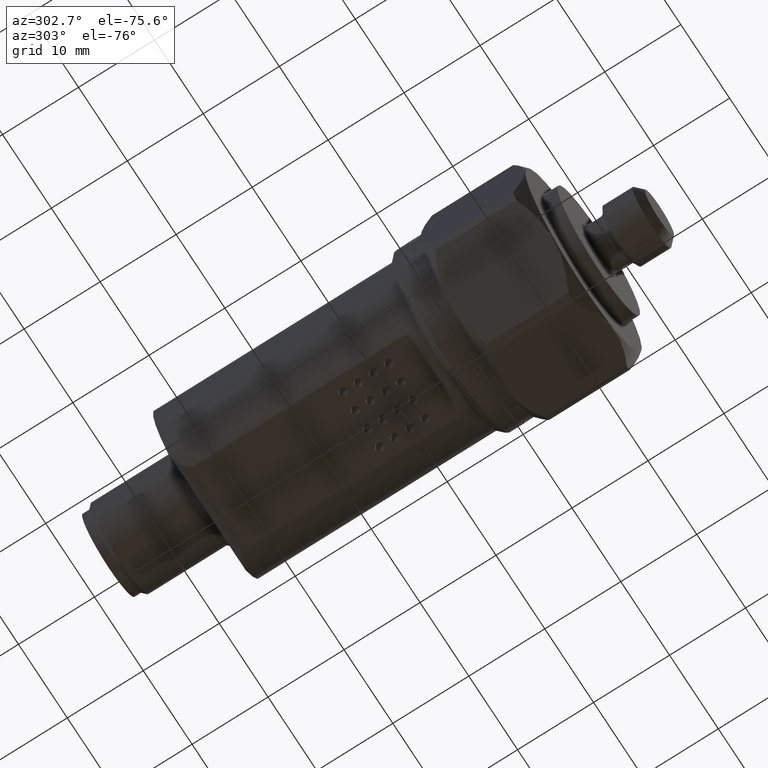
[diagram: clean part render]
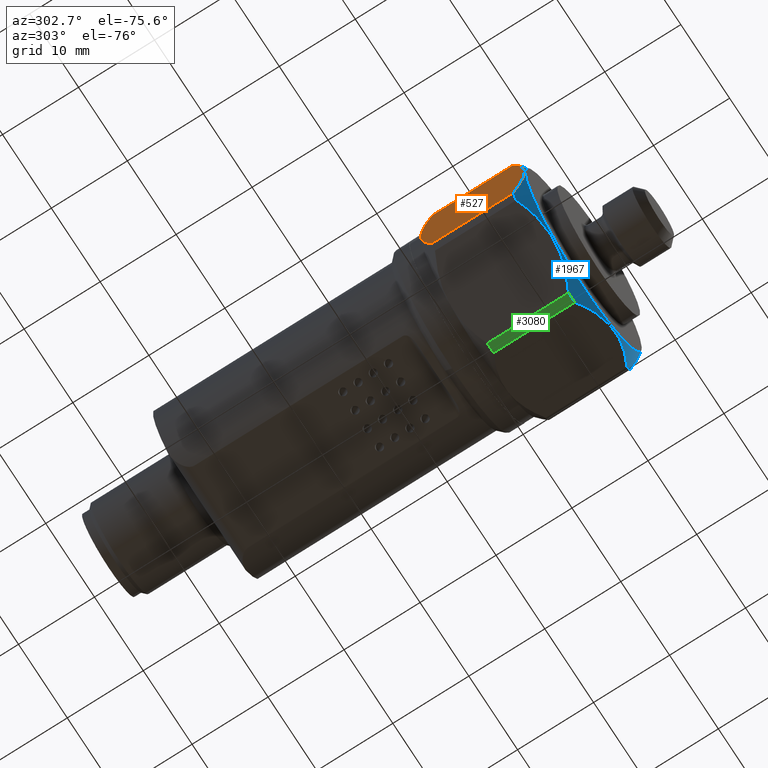
[diagram: same view with three faces highlighted in distinct colors, each labeled with its STEP entity id]
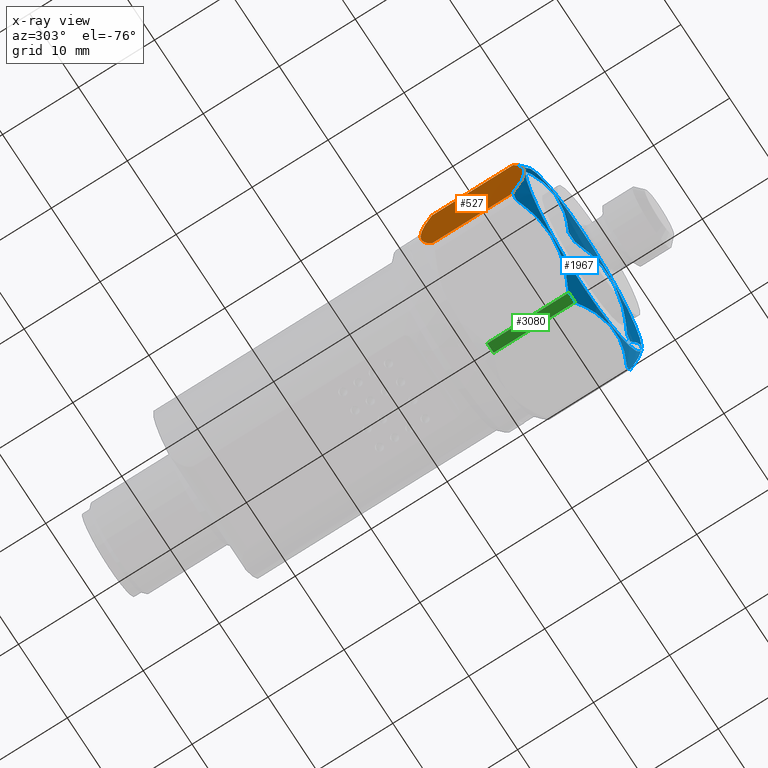
[diagram: x-ray of the same camera — body ghosted, the three highlighted faces saturated]
A machine part, auxiliary view with three faces highlighted in distinct colors.
The next image is the same camera in x-ray (body ghosted, the three faces saturated) — at least one of them is partly hidden behind the body in this view.
Their STEP definitions:

[orange] entity #527 — the highlighted planar face has unit normal (-1, 0, 0).
#19 = ORIENTED_EDGE ( 'NONE', *, *, #1417, .F. ) ;
#84 = FACE_OUTER_BOUND ( 'NONE', #4484, .T. ) ;
#153 = CARTESIAN_POINT ( 'NONE',  ( -12.00000000000000000, -12.79999999999999893, 6.184658438426490434 ) ) ;
#527 = ADVANCED_FACE ( 'NONE', ( #84 ), #3765, .T. ) ;
#899 = CARTESIAN_POINT ( 'NONE',  ( -12.00000000000000000, -0.5999999999999999778, 0.000000000000000000 ) ) ;
#1242 = ORIENTED_EDGE ( 'NONE', *, *, #5354, .F. ) ;
#1417 = EDGE_CURVE ( 'NONE', #5133, #7495, #5798, .T. ) ;
#1435 = CARTESIAN_POINT ( 'NONE',  ( -12.00000000000000000, -12.79999999999999893, -6.184658438426490434 ) ) ;
#1535 = VERTEX_POINT ( 'NONE', #8057 ) ;
#1836 =( BOUNDED_CURVE ( )  B_SPLINE_CURVE ( 2, ( #3225, #4513, #3931 ),
 .UNSPECIFIED., .F., .T. ) 
 B_SPLINE_CURVE_WITH_KNOTS ( ( 3, 3 ),
 ( -3.800687942970240041, -2.717907691998060038 ),
 .UNSPECIFIED. ) 
 CURVE ( )  GEOMETRIC_REPRESENTATION_ITEM ( )  RATIONAL_B_SPLINE_CURVE ( ( 1.495424836601309870, 1.588888888888890127, 1.588888888888890127 ) ) 
 REPRESENTATION_ITEM ( '' )  );
#1961 = ORIENTED_EDGE ( 'NONE', *, *, #6093, .T. ) ;
#2216 = CARTESIAN_POINT ( 'NONE',  ( -12.00000000000000000, -2.100000000000000089, -6.184658438426490434 ) ) ;
#2290 = CARTESIAN_POINT ( 'NONE',  ( -11.99999999999999822, -2.100000000000000089, 6.184658438426489546 ) ) ;
#2670 = CARTESIAN_POINT ( 'NONE',  ( -11.99999999999999467, -15.63333333333330089, 3.108624468950439102E-15 ) ) ;
#3225 = CARTESIAN_POINT ( 'NONE',  ( -11.99999999999999822, -2.100000000000000089, -6.184658438426489546 ) ) ;
#3576 = VERTEX_POINT ( 'NONE', #7684 ) ;
#3601 = ORIENTED_EDGE ( 'NONE', *, *, #4733, .F. ) ;
#3617 =( BOUNDED_CURVE ( )  B_SPLINE_CURVE ( 2, ( #153, #2670, #1435 ),
 .UNSPECIFIED., .F., .T. ) 
 B_SPLINE_CURVE_WITH_KNOTS ( ( 3, 3 ),
 ( -3.555999390323370424, -1.483567775731710281 ),
 .UNSPECIFIED. ) 
 CURVE ( )  GEOMETRIC_REPRESENTATION_ITEM ( )  RATIONAL_B_SPLINE_CURVE ( ( 1.443163813940429918, 1.623559290682979883, 1.443163813940429918 ) ) 
 REPRESENTATION_ITEM ( '' )  );
#3697 = AXIS2_PLACEMENT_3D ( 'NONE', #6898, #6287, #6325 ) ;
#3765 = PLANE ( 'NONE',  #3697 ) ;
#3931 = CARTESIAN_POINT ( 'NONE',  ( -12.00000000000000000, -0.5999999999999999778, 0.000000000000000000 ) ) ;
#4195 = CARTESIAN_POINT ( 'NONE',  ( -12.00000000000000000, -0.5999999999999999778, 0.000000000000000000 ) ) ;
#4484 = EDGE_LOOP ( 'NONE', ( #4818, #1242, #1961, #19, #3601 ) ) ;
#4492 = DIRECTION ( 'NONE',  ( 0.000000000000000000, 1.000000000000000000, 0.000000000000000000 ) ) ;
#4513 = CARTESIAN_POINT ( 'NONE',  ( -12.00000000000000888, -0.5999999999999962030, -2.910427500435958326 ) ) ;
#4703 = CARTESIAN_POINT ( 'NONE',  ( -12.00000000000000888, -0.5999999999999949818, 2.910427500435952997 ) ) ;
#4711 = LINE ( 'NONE', #5528, #7137 ) ;
#4733 = EDGE_CURVE ( 'NONE', #6052, #5133, #1836, .T. ) ;
#4783 = CARTESIAN_POINT ( 'NONE',  ( -12.00000000000000000, -2.100000000000000089, 6.184658438426490434 ) ) ;
#4818 = ORIENTED_EDGE ( 'NONE', *, *, #5367, .F. ) ;
#5133 = VERTEX_POINT ( 'NONE', #899 ) ;
#5243 = CARTESIAN_POINT ( 'NONE',  ( -12.00000000000000000, -10.00000000000000000, -6.184658438426490434 ) ) ;
#5354 = EDGE_CURVE ( 'NONE', #1535, #3576, #3617, .T. ) ;
#5367 = EDGE_CURVE ( 'NONE', #3576, #6052, #7748, .T. ) ;
#5528 = CARTESIAN_POINT ( 'NONE',  ( -12.00000000000000000, -10.00000000000000000, 6.184658438426490434 ) ) ;
#5798 =( BOUNDED_CURVE ( )  B_SPLINE_CURVE ( 2, ( #4195, #4703, #2290 ),
 .UNSPECIFIED., .F., .T. ) 
 B_SPLINE_CURVE_WITH_KNOTS ( ( 3, 3 ),
 ( -2.717907691998060038, -1.635127441025870043 ),
 .UNSPECIFIED. ) 
 CURVE ( )  GEOMETRIC_REPRESENTATION_ITEM ( )  RATIONAL_B_SPLINE_CURVE ( ( 1.588888888888890127, 1.588888888888890127, 1.495424836601309870 ) ) 
 REPRESENTATION_ITEM ( '' )  );
#6052 = VERTEX_POINT ( 'NONE', #2216 ) ;
#6093 = EDGE_CURVE ( 'NONE', #1535, #7495, #4711, .T. ) ;
#6287 = DIRECTION ( 'NONE',  ( -1.000000000000000000, 0.000000000000000000, 0.000000000000000000 ) ) ;
#6325 = DIRECTION ( 'NONE',  ( 0.000000000000000000, 0.000000000000000000, 1.000000000000000000 ) ) ;
#6427 = VECTOR ( 'NONE', #4492, 1000.000000000000000 ) ;
#6712 = DIRECTION ( 'NONE',  ( 0.000000000000000000, 1.000000000000000000, 0.000000000000000000 ) ) ;
#6898 = CARTESIAN_POINT ( 'NONE',  ( -12.00000000000000000, 38.07799508674930422, 6.928203230275509661 ) ) ;
#7137 = VECTOR ( 'NONE', #6712, 1000.000000000000000 ) ;
#7495 = VERTEX_POINT ( 'NONE', #4783 ) ;
#7684 = CARTESIAN_POINT ( 'NONE',  ( -12.00000000000000000, -12.80000000000000071, -6.184658438426490434 ) ) ;
#7748 = LINE ( 'NONE', #5243, #6427 ) ;
#8057 = CARTESIAN_POINT ( 'NONE',  ( -12.00000000000000000, -12.80000000000000071, 6.184658438426490434 ) ) ;

[blue] entity #1967 — the highlighted conical surface has half-angle 45 deg.
#60 = CARTESIAN_POINT ( 'NONE',  ( 0.000000000000000000, -12.80000000000000071, 0.000000000000000000 ) ) ;
#153 = CARTESIAN_POINT ( 'NONE',  ( -12.00000000000000000, -12.79999999999999893, 6.184658438426490434 ) ) ;
#162 = VERTEX_POINT ( 'NONE', #1990 ) ;
#232 = AXIS2_PLACEMENT_3D ( 'NONE', #3291, #1972, #4500 ) ;
#301 = DIRECTION ( 'NONE',  ( 0.000000000000000000, -1.000000000000000000, 0.000000000000000000 ) ) ;
#302 = AXIS2_PLACEMENT_3D ( 'NONE', #1893, #5313, #1433 ) ;
#607 = EDGE_CURVE ( 'NONE', #162, #5065, #8100, .T. ) ;
#704 = ORIENTED_EDGE ( 'NONE', *, *, #3366, .T. ) ;
#799 = DIRECTION ( 'NONE',  ( 2.486899575160350019E-14, 0.000000000000000000, 1.000000000000000000 ) ) ;
#862 = CARTESIAN_POINT ( 'NONE',  ( 0.6439286785928679535, -12.80000000000000071, -13.48463406462650127 ) ) ;
#971 = ORIENTED_EDGE ( 'NONE', *, *, #607, .T. ) ;
#1086 = DIRECTION ( 'NONE',  ( 0.000000000000000000, 0.000000000000000000, -1.000000000000000000 ) ) ;
#1305 = VERTEX_POINT ( 'NONE', #3864 ) ;
#1353 = ORIENTED_EDGE ( 'NONE', *, *, #5066, .T. ) ;
#1429 = ORIENTED_EDGE ( 'NONE', *, *, #8149, .T. ) ;
#1433 = DIRECTION ( 'NONE',  ( -8.881784197001250351E-16, 0.000000000000000000, 1.000000000000000000 ) ) ;
#1435 = CARTESIAN_POINT ( 'NONE',  ( -12.00000000000000000, -12.79999999999999893, -6.184658438426490434 ) ) ;
#1483 = CARTESIAN_POINT ( 'NONE',  ( 12.00000000000000000, -12.79999999999999893, -6.184658438426500204 ) ) ;
#1494 = CIRCLE ( 'NONE', #2555, 11.95000000000000107 ) ;
#1503 = DIRECTION ( 'NONE',  ( 0.000000000000000000, 1.000000000000000000, 0.000000000000000000 ) ) ;
#1535 = VERTEX_POINT ( 'NONE', #8057 ) ;
#1815 = CARTESIAN_POINT ( 'NONE',  ( -11.35607132140710007, -12.80000000000000071, 7.299975626200019718 ) ) ;
#1847 = VERTEX_POINT ( 'NONE', #4215 ) ;
#1872 = CARTESIAN_POINT ( 'NONE',  ( -0.6439286785928629575, -12.80000000000000071, -13.48463406462650305 ) ) ;
#1893 = CARTESIAN_POINT ( 'NONE',  ( 0.000000000000000000, -12.80000000000000071, 0.000000000000000000 ) ) ;
#1914 = DIRECTION ( 'NONE',  ( 1.509903313490210371E-14, 0.000000000000000000, 1.000000000000000000 ) ) ;
#1967 = ADVANCED_FACE ( 'NONE', ( #4258, #7774 ), #3211, .T. ) ;
#1972 = DIRECTION ( 'NONE',  ( 0.000000000000000000, -1.000000000000000000, 0.000000000000000000 ) ) ;
#1990 = CARTESIAN_POINT ( 'NONE',  ( 12.00000000000000000, -12.80000000000000071, -6.184658438426500204 ) ) ;
#2094 = CARTESIAN_POINT ( 'NONE',  ( 12.00000000000000000, -12.80000000000000071, 6.184658438426500204 ) ) ;
#2117 = CARTESIAN_POINT ( 'NONE',  ( 11.35607132140710007, -12.80000000000000071, 7.299975626200030376 ) ) ;
#2118 = EDGE_LOOP ( 'NONE', ( #6635 ) ) ;
#2253 = CARTESIAN_POINT ( 'NONE',  ( -5.999999999999999112, -15.63333333333330444, 10.39230484541329957 ) ) ;
#2317 =( BOUNDED_CURVE ( )  B_SPLINE_CURVE ( 2, ( #3224, #6979, #5833 ),
 .UNSPECIFIED., .F., .T. ) 
 B_SPLINE_CURVE_WITH_KNOTS ( ( 3, 3 ),
 ( -3.555874643590849704, -1.483490395776710269 ),
 .UNSPECIFIED. ) 
 CURVE ( )  GEOMETRIC_REPRESENTATION_ITEM ( )  RATIONAL_B_SPLINE_CURVE ( ( 1.443137254901960098, 1.623529411764700114, 1.443137254901960098 ) ) 
 REPRESENTATION_ITEM ( '' )  );
#2321 = CARTESIAN_POINT ( 'NONE',  ( 0.6439286785928679535, -12.80000000000000071, -13.48463406462650305 ) ) ;
#2467 =( BOUNDED_CURVE ( )  B_SPLINE_CURVE ( 2, ( #3161, #3651, #1872 ),
 .UNSPECIFIED., .F., .T. ) 
 B_SPLINE_CURVE_WITH_KNOTS ( ( 3, 3 ),
 ( -3.555874643590849704, -1.483490395776700055 ),
 .UNSPECIFIED. ) 
 CURVE ( )  GEOMETRIC_REPRESENTATION_ITEM ( )  RATIONAL_B_SPLINE_CURVE ( ( 1.443137254901960098, 1.623529411764700114, 1.443137254901960098 ) ) 
 REPRESENTATION_ITEM ( '' )  );
#2489 = CARTESIAN_POINT ( 'NONE',  ( 0.6439286785928800549, -12.80000000000000071, 13.48463406462650127 ) ) ;
#2555 = AXIS2_PLACEMENT_3D ( 'NONE', #6697, #7264, #1086 ) ;
#2559 = AXIS2_PLACEMENT_3D ( 'NONE', #4655, #1503, #7228 ) ;
#2575 = ORIENTED_EDGE ( 'NONE', *, *, #5354, .T. ) ;
#2670 = CARTESIAN_POINT ( 'NONE',  ( -11.99999999999999467, -15.63333333333330089, 3.108624468950439102E-15 ) ) ;
#2678 = VERTEX_POINT ( 'NONE', #3131 ) ;
#2745 = CARTESIAN_POINT ( 'NONE',  ( -11.35607132140710007, -12.80000000000000071, -7.299975626200010836 ) ) ;
#3064 = AXIS2_PLACEMENT_3D ( 'NONE', #60, #4516, #7733 ) ;
#3110 = VERTEX_POINT ( 'NONE', #5035 ) ;
#3131 = CARTESIAN_POINT ( 'NONE',  ( -0.6439286785928710621, -12.80000000000000071, 13.48463406462650127 ) ) ;
#3161 = CARTESIAN_POINT ( 'NONE',  ( -11.35607132140710007, -12.80000000000000071, -7.299975626200011725 ) ) ;
#3211 = CONICAL_SURFACE ( 'NONE', #2559, 15.00000000000000000, 0.7853981633974469467 ) ;
#3224 = CARTESIAN_POINT ( 'NONE',  ( 11.35607132140710007, -12.80000000000000071, 7.299975626200029488 ) ) ;
#3244 = AXIS2_PLACEMENT_3D ( 'NONE', #6532, #301, #799 ) ;
#3291 = CARTESIAN_POINT ( 'NONE',  ( 0.000000000000000000, -12.80000000000000071, 0.000000000000000000 ) ) ;
#3296 = CARTESIAN_POINT ( 'NONE',  ( 11.99999999999999467, -15.63333333333330089, -8.881784197001245421E-16 ) ) ;
#3366 = EDGE_CURVE ( 'NONE', #5100, #1305, #6108, .T. ) ;
#3377 = CARTESIAN_POINT ( 'NONE',  ( 12.00000000000000000, -12.79999999999999893, 6.184658438426500204 ) ) ;
#3440 = CIRCLE ( 'NONE', #6878, 13.50000000000000000 ) ;
#3539 = ORIENTED_EDGE ( 'NONE', *, *, #7292, .T. ) ;
#3576 = VERTEX_POINT ( 'NONE', #7684 ) ;
#3617 =( BOUNDED_CURVE ( )  B_SPLINE_CURVE ( 2, ( #153, #2670, #1435 ),
 .UNSPECIFIED., .F., .T. ) 
 B_SPLINE_CURVE_WITH_KNOTS ( ( 3, 3 ),
 ( -3.555999390323370424, -1.483567775731710281 ),
 .UNSPECIFIED. ) 
 CURVE ( )  GEOMETRIC_REPRESENTATION_ITEM ( )  RATIONAL_B_SPLINE_CURVE ( ( 1.443163813940429918, 1.623559290682979883, 1.443163813940429918 ) ) 
 REPRESENTATION_ITEM ( '' )  );
#3651 = CARTESIAN_POINT ( 'NONE',  ( -5.999999999999986677, -15.63333333333330444, -10.39230484541329957 ) ) ;
#3864 = CARTESIAN_POINT ( 'NONE',  ( 11.35607132140710007, -12.80000000000000071, -7.299975626200019718 ) ) ;
#4102 = ORIENTED_EDGE ( 'NONE', *, *, #7672, .T. ) ;
#4215 = CARTESIAN_POINT ( 'NONE',  ( 0.000000000000000000, -14.34999999999999964, -11.95000000000000107 ) ) ;
#4239 = CARTESIAN_POINT ( 'NONE',  ( -0.6439286785928710621, -12.80000000000000071, 13.48463406462650305 ) ) ;
#4258 = FACE_BOUND ( 'NONE', #2118, .T. ) ;
#4300 = EDGE_CURVE ( 'NONE', #5065, #6303, #4838, .T. ) ;
#4500 = DIRECTION ( 'NONE',  ( 1.953992523340279613E-14, 0.000000000000000000, 1.000000000000000000 ) ) ;
#4516 = DIRECTION ( 'NONE',  ( 0.000000000000000000, -1.000000000000000000, 0.000000000000000000 ) ) ;
#4655 = CARTESIAN_POINT ( 'NONE',  ( 0.000000000000000000, -11.29999999999999893, 0.000000000000000000 ) ) ;
#4838 = CIRCLE ( 'NONE', #3244, 13.50000000000000000 ) ;
#4848 = ORIENTED_EDGE ( 'NONE', *, *, #6011, .T. ) ;
#4899 = ORIENTED_EDGE ( 'NONE', *, *, #6112, .T. ) ;
#4904 = VERTEX_POINT ( 'NONE', #1815 ) ;
#4989 = CIRCLE ( 'NONE', #232, 13.50000000000000000 ) ;
#5035 = CARTESIAN_POINT ( 'NONE',  ( -0.6439286785928629575, -12.80000000000000071, -13.48463406462650127 ) ) ;
#5065 = VERTEX_POINT ( 'NONE', #2094 ) ;
#5066 = EDGE_CURVE ( 'NONE', #1305, #162, #4989, .T. ) ;
#5100 = VERTEX_POINT ( 'NONE', #862 ) ;
#5313 = DIRECTION ( 'NONE',  ( 0.000000000000000000, -1.000000000000000000, 0.000000000000000000 ) ) ;
#5354 = EDGE_CURVE ( 'NONE', #1535, #3576, #3617, .T. ) ;
#5369 = DIRECTION ( 'NONE',  ( 0.000000000000000000, -1.000000000000000000, 0.000000000000000000 ) ) ;
#5389 = CARTESIAN_POINT ( 'NONE',  ( 5.999999999999999112, -15.63333333333330444, -10.39230484541329957 ) ) ;
#5630 = ORIENTED_EDGE ( 'NONE', *, *, #6419, .T. ) ;
#5833 = CARTESIAN_POINT ( 'NONE',  ( 0.6439286785928800549, -12.80000000000000071, 13.48463406462650305 ) ) ;
#5979 = DIRECTION ( 'NONE',  ( 0.000000000000000000, 0.000000000000000000, 1.000000000000000000 ) ) ;
#6011 = EDGE_CURVE ( 'NONE', #8027, #2678, #3440, .T. ) ;
#6059 = CARTESIAN_POINT ( 'NONE',  ( 0.000000000000000000, -12.80000000000000071, 0.000000000000000000 ) ) ;
#6108 =( BOUNDED_CURVE ( )  B_SPLINE_CURVE ( 2, ( #2321, #5389, #7263 ),
 .UNSPECIFIED., .F., .T. ) 
 B_SPLINE_CURVE_WITH_KNOTS ( ( 3, 3 ),
 ( -3.555874643590849704, -1.483490395776700055 ),
 .UNSPECIFIED. ) 
 CURVE ( )  GEOMETRIC_REPRESENTATION_ITEM ( )  RATIONAL_B_SPLINE_CURVE ( ( 1.443137254901960098, 1.623529411764700114, 1.443137254901960098 ) ) 
 REPRESENTATION_ITEM ( '' )  );
#6112 = EDGE_CURVE ( 'NONE', #2678, #4904, #7249, .T. ) ;
#6208 = DIRECTION ( 'NONE',  ( 0.000000000000000000, -1.000000000000000000, 0.000000000000000000 ) ) ;
#6295 = VERTEX_POINT ( 'NONE', #2745 ) ;
#6303 = VERTEX_POINT ( 'NONE', #2117 ) ;
#6419 = EDGE_CURVE ( 'NONE', #3110, #5100, #8050, .T. ) ;
#6461 = EDGE_CURVE ( 'NONE', #3576, #6295, #6603, .T. ) ;
#6532 = CARTESIAN_POINT ( 'NONE',  ( 0.000000000000000000, -12.80000000000000071, 0.000000000000000000 ) ) ;
#6603 = CIRCLE ( 'NONE', #3064, 13.50000000000000000 ) ;
#6635 = ORIENTED_EDGE ( 'NONE', *, *, #7942, .F. ) ;
#6697 = CARTESIAN_POINT ( 'NONE',  ( 0.000000000000000000, -14.34999999999999964, 0.000000000000000000 ) ) ;
#6709 = ORIENTED_EDGE ( 'NONE', *, *, #4300, .T. ) ;
#6747 = CARTESIAN_POINT ( 'NONE',  ( -11.35607132140710007, -12.80000000000000071, 7.299975626200019718 ) ) ;
#6878 = AXIS2_PLACEMENT_3D ( 'NONE', #6059, #5369, #5979 ) ;
#6948 = CARTESIAN_POINT ( 'NONE',  ( 0.000000000000000000, -12.80000000000000071, 0.000000000000000000 ) ) ;
#6979 = CARTESIAN_POINT ( 'NONE',  ( 6.000000000000005329, -15.63333333333330444, 10.39230484541329957 ) ) ;
#7228 = DIRECTION ( 'NONE',  ( 0.000000000000000000, 0.000000000000000000, 1.000000000000000000 ) ) ;
#7249 =( BOUNDED_CURVE ( )  B_SPLINE_CURVE ( 2, ( #4239, #2253, #6747 ),
 .UNSPECIFIED., .F., .T. ) 
 B_SPLINE_CURVE_WITH_KNOTS ( ( 3, 3 ),
 ( -3.555874643590849704, -1.483490395776700055 ),
 .UNSPECIFIED. ) 
 CURVE ( )  GEOMETRIC_REPRESENTATION_ITEM ( )  RATIONAL_B_SPLINE_CURVE ( ( 1.443137254901960098, 1.623529411764700114, 1.443137254901960098 ) ) 
 REPRESENTATION_ITEM ( '' )  );
#7263 = CARTESIAN_POINT ( 'NONE',  ( 11.35607132140710007, -12.80000000000000071, -7.299975626200019718 ) ) ;
#7264 = DIRECTION ( 'NONE',  ( 0.000000000000000000, -1.000000000000000000, 0.000000000000000000 ) ) ;
#7292 = EDGE_CURVE ( 'NONE', #4904, #1535, #8075, .T. ) ;
#7397 = AXIS2_PLACEMENT_3D ( 'NONE', #6948, #6208, #1914 ) ;
#7653 = EDGE_LOOP ( 'NONE', ( #971, #6709, #1429, #4848, #4899, #3539, #2575, #8004, #4102, #5630, #704, #1353 ) ) ;
#7672 = EDGE_CURVE ( 'NONE', #6295, #3110, #2467, .T. ) ;
#7684 = CARTESIAN_POINT ( 'NONE',  ( -12.00000000000000000, -12.80000000000000071, -6.184658438426490434 ) ) ;
#7733 = DIRECTION ( 'NONE',  ( 9.769962616701380711E-15, 0.000000000000000000, 1.000000000000000000 ) ) ;
#7774 = FACE_OUTER_BOUND ( 'NONE', #7653, .T. ) ;
#7942 = EDGE_CURVE ( 'NONE', #1847, #1847, #1494, .T. ) ;
#8004 = ORIENTED_EDGE ( 'NONE', *, *, #6461, .T. ) ;
#8027 = VERTEX_POINT ( 'NONE', #2489 ) ;
#8050 = CIRCLE ( 'NONE', #7397, 13.50000000000000000 ) ;
#8057 = CARTESIAN_POINT ( 'NONE',  ( -12.00000000000000000, -12.80000000000000071, 6.184658438426490434 ) ) ;
#8075 = CIRCLE ( 'NONE', #302, 13.50000000000000000 ) ;
#8100 =( BOUNDED_CURVE ( )  B_SPLINE_CURVE ( 2, ( #1483, #3296, #3377 ),
 .UNSPECIFIED., .F., .T. ) 
 B_SPLINE_CURVE_WITH_KNOTS ( ( 3, 3 ),
 ( -3.555999390323370424, -1.483567775731710281 ),
 .UNSPECIFIED. ) 
 CURVE ( )  GEOMETRIC_REPRESENTATION_ITEM ( )  RATIONAL_B_SPLINE_CURVE ( ( 1.443163813940429918, 1.623559290682979883, 1.443163813940429918 ) ) 
 REPRESENTATION_ITEM ( '' )  );
#8149 = EDGE_CURVE ( 'NONE', #6303, #8027, #2317, .T. ) ;

[green] entity #3080 — the highlighted cylindrical surface (partial cylindrical patch) has radius 13.5 mm, axis along (0, -1, 0).
#130 = DIRECTION ( 'NONE',  ( 0.000000000000000000, 1.000000000000000000, 0.000000000000000000 ) ) ;
#315 = AXIS2_PLACEMENT_3D ( 'NONE', #4278, #1143, #6172 ) ;
#862 = CARTESIAN_POINT ( 'NONE',  ( 0.6439286785928679535, -12.80000000000000071, -13.48463406462650127 ) ) ;
#974 = DIRECTION ( 'NONE',  ( 0.000000000000000000, 1.000000000000000000, 0.000000000000000000 ) ) ;
#1143 = DIRECTION ( 'NONE',  ( 0.000000000000000000, -1.000000000000000000, 0.000000000000000000 ) ) ;
#1195 = VERTEX_POINT ( 'NONE', #3168 ) ;
#1506 = ORIENTED_EDGE ( 'NONE', *, *, #6419, .F. ) ;
#1627 = VECTOR ( 'NONE', #974, 1000.000000000000000 ) ;
#1671 = LINE ( 'NONE', #6793, #1627 ) ;
#1745 = CYLINDRICAL_SURFACE ( 'NONE', #315, 13.50000000000000000 ) ;
#1827 = DIRECTION ( 'NONE',  ( 0.000000000000000000, 0.000000000000000000, -1.000000000000000000 ) ) ;
#1914 = DIRECTION ( 'NONE',  ( 1.509903313490210371E-14, 0.000000000000000000, 1.000000000000000000 ) ) ;
#2074 = EDGE_CURVE ( 'NONE', #3110, #1195, #1671, .T. ) ;
#2308 = AXIS2_PLACEMENT_3D ( 'NONE', #4394, #8047, #1827 ) ;
#2440 = ORIENTED_EDGE ( 'NONE', *, *, #2074, .T. ) ;
#3080 = ADVANCED_FACE ( 'NONE', ( #7402 ), #1745, .T. ) ;
#3110 = VERTEX_POINT ( 'NONE', #5035 ) ;
#3168 = CARTESIAN_POINT ( 'NONE',  ( -0.6439286785928599599, -2.100000000000000089, -13.48463406462650127 ) ) ;
#4278 = CARTESIAN_POINT ( 'NONE',  ( 0.000000000000000000, -45.31432097185360419, 0.000000000000000000 ) ) ;
#4331 = VERTEX_POINT ( 'NONE', #7849 ) ;
#4394 = CARTESIAN_POINT ( 'NONE',  ( 0.000000000000000000, -2.100000000000000089, 0.000000000000000000 ) ) ;
#4556 = CARTESIAN_POINT ( 'NONE',  ( 0.6439286785928679535, -10.00000000000000000, -13.48463406462650127 ) ) ;
#4592 = EDGE_CURVE ( 'NONE', #1195, #4331, #6792, .T. ) ;
#5035 = CARTESIAN_POINT ( 'NONE',  ( -0.6439286785928629575, -12.80000000000000071, -13.48463406462650127 ) ) ;
#5100 = VERTEX_POINT ( 'NONE', #862 ) ;
#5291 = EDGE_LOOP ( 'NONE', ( #7323, #1506, #2440, #7671 ) ) ;
#5793 = LINE ( 'NONE', #4556, #6507 ) ;
#6172 = DIRECTION ( 'NONE',  ( 0.000000000000000000, 0.000000000000000000, -1.000000000000000000 ) ) ;
#6208 = DIRECTION ( 'NONE',  ( 0.000000000000000000, -1.000000000000000000, 0.000000000000000000 ) ) ;
#6419 = EDGE_CURVE ( 'NONE', #3110, #5100, #8050, .T. ) ;
#6507 = VECTOR ( 'NONE', #130, 1000.000000000000000 ) ;
#6792 = CIRCLE ( 'NONE', #2308, 13.50000000000000000 ) ;
#6793 = CARTESIAN_POINT ( 'NONE',  ( -0.6439286785928599599, -6.000000000000000000, -13.48463406462650127 ) ) ;
#6948 = CARTESIAN_POINT ( 'NONE',  ( 0.000000000000000000, -12.80000000000000071, 0.000000000000000000 ) ) ;
#7323 = ORIENTED_EDGE ( 'NONE', *, *, #8160, .F. ) ;
#7397 = AXIS2_PLACEMENT_3D ( 'NONE', #6948, #6208, #1914 ) ;
#7402 = FACE_OUTER_BOUND ( 'NONE', #5291, .T. ) ;
#7671 = ORIENTED_EDGE ( 'NONE', *, *, #4592, .T. ) ;
#7849 = CARTESIAN_POINT ( 'NONE',  ( 0.6439286785928679535, -2.100000000000000089, -13.48463406462650127 ) ) ;
#8047 = DIRECTION ( 'NONE',  ( 0.000000000000000000, -1.000000000000000000, 0.000000000000000000 ) ) ;
#8050 = CIRCLE ( 'NONE', #7397, 13.50000000000000000 ) ;
#8160 = EDGE_CURVE ( 'NONE', #5100, #4331, #5793, .T. ) ;